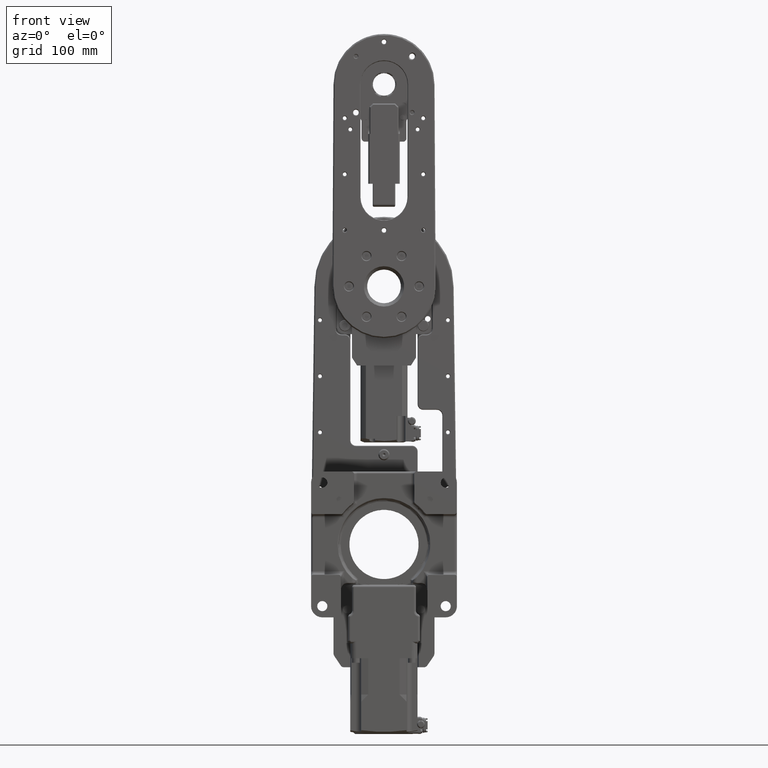
[diagram: clean part render]
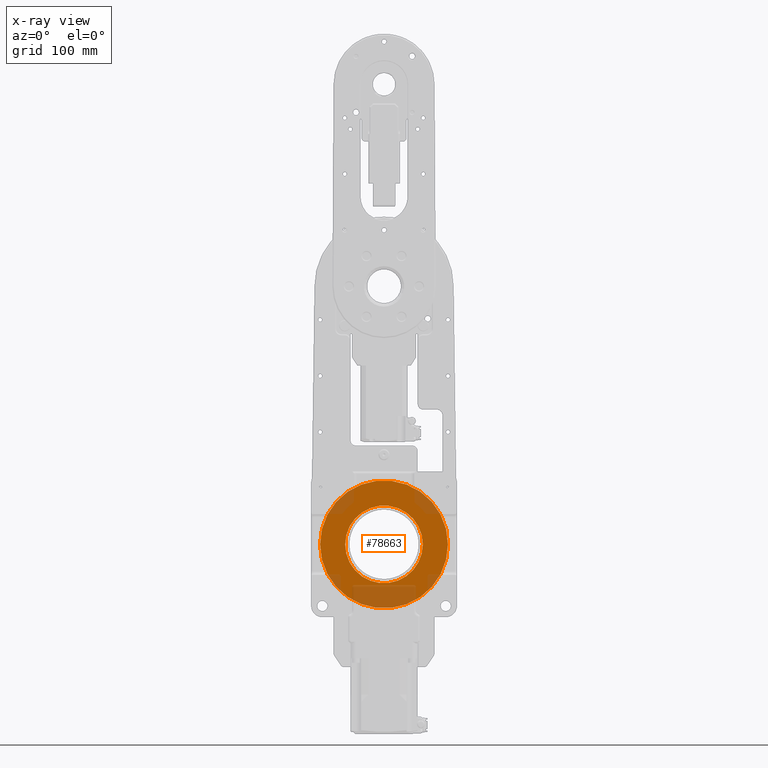
[diagram: x-ray — body ghosted, one internal face saturated and labeled with its STEP entity id]
A machine part, front view, then the same camera in x-ray: the body is ghosted and one INTERNAL B-rep face — a face not visible from any outside direction — is saturated and labeled: STEP entity #78663.
In plain terms, the highlighted planar face has unit normal (0, -1, -0).
Its self-contained STEP definition (entity closure, byte-faithful):
#5330 = DIRECTION ( 'NONE',  ( 1.000000000000000000, 0.0000000000000000000, 0.0000000000000000000 ) ) ;
#6544 = CARTESIAN_POINT ( 'NONE',  ( -8.437694987151192863E-15, 75.99999999999997158, 0.0000000000000000000 ) ) ;
#6584 = CARTESIAN_POINT ( 'NONE',  ( 34.60000000000002274, 75.99999999999997158, 0.0000000000000000000 ) ) ;
#8549 = EDGE_LOOP ( 'NONE', ( #80336, #82407 ) ) ;
#8593 = DIRECTION ( 'NONE',  ( -1.110223024625157280E-16, 1.000000000000000000, 0.0000000000000000000 ) ) ;
#11658 = VERTEX_POINT ( 'NONE', #83255 ) ;
#13809 = EDGE_CURVE ( 'NONE', #91487, #64564, #56245, .T. ) ;
#15394 = AXIS2_PLACEMENT_3D ( 'NONE', #81134, #8593, #86813 ) ;
#15498 = PLANE ( 'NONE',  #65020 ) ;
#22712 = CIRCLE ( 'NONE', #24217, 34.60000000000002984 ) ;
#24217 = AXIS2_PLACEMENT_3D ( 'NONE', #6544, #28827, #57717 ) ;
#28827 = DIRECTION ( 'NONE',  ( -1.110223024625157280E-16, 1.000000000000000000, 0.0000000000000000000 ) ) ;
#31226 = EDGE_CURVE ( 'NONE', #72091, #11658, #70294, .T. ) ;
#40434 = CARTESIAN_POINT ( 'NONE',  ( -8.437694987151192863E-15, 75.99999999999997158, 0.0000000000000000000 ) ) ;
#41422 = AXIS2_PLACEMENT_3D ( 'NONE', #51171, #80094, #57803 ) ;
#43026 = FACE_BOUND ( 'NONE', #59321, .T. ) ;
#45963 = CARTESIAN_POINT ( 'NONE',  ( -34.60000000000003695, 75.99999999999997158, -4.237277925049845435E-15 ) ) ;
#51171 = CARTESIAN_POINT ( 'NONE',  ( -8.437694987151192863E-15, 75.99999999999997158, 0.0000000000000000000 ) ) ;
#51244 = EDGE_CURVE ( 'NONE', #11658, #72091, #91321, .T. ) ;
#56245 = CIRCLE ( 'NONE', #15394, 34.60000000000002984 ) ;
#57717 = DIRECTION ( 'NONE',  ( 1.000000000000000000, 0.0000000000000000000, 0.0000000000000000000 ) ) ;
#57803 = DIRECTION ( 'NONE',  ( 1.000000000000000000, 0.0000000000000000000, 0.0000000000000000000 ) ) ;
#59069 = FACE_OUTER_BOUND ( 'NONE', #8549, .T. ) ;
#59321 = EDGE_LOOP ( 'NONE', ( #70349, #64970 ) ) ;
#64564 = VERTEX_POINT ( 'NONE', #6584 ) ;
#64970 = ORIENTED_EDGE ( 'NONE', *, *, #13809, .T. ) ;
#65020 = AXIS2_PLACEMENT_3D ( 'NONE', #80432, #66689, #71936 ) ;
#66689 = DIRECTION ( 'NONE',  ( 5.551115123125795028E-17, -1.000000000000000000, -0.0000000000000000000 ) ) ;
#70294 = CIRCLE ( 'NONE', #80938, 57.00000000000000711 ) ;
#70349 = ORIENTED_EDGE ( 'NONE', *, *, #92934, .T. ) ;
#71936 = DIRECTION ( 'NONE',  ( -1.000000000000000000, -5.551115123125795028E-17, 0.0000000000000000000 ) ) ;
#72091 = VERTEX_POINT ( 'NONE', #89690 ) ;
#77375 = DIRECTION ( 'NONE',  ( 1.110223024625157280E-16, -1.000000000000000000, -0.0000000000000000000 ) ) ;
#78663 = ADVANCED_FACE ( 'NONE', ( #59069, #43026 ), #15498, .T. ) ;
#80094 = DIRECTION ( 'NONE',  ( 1.110223024625157280E-16, -1.000000000000000000, -0.0000000000000000000 ) ) ;
#80336 = ORIENTED_EDGE ( 'NONE', *, *, #51244, .T. ) ;
#80432 = CARTESIAN_POINT ( 'NONE',  ( -8.437694987151192863E-15, 75.99999999999997158, 0.0000000000000000000 ) ) ;
#80938 = AXIS2_PLACEMENT_3D ( 'NONE', #40434, #77375, #5330 ) ;
#81134 = CARTESIAN_POINT ( 'NONE',  ( -8.437694987151192863E-15, 75.99999999999997158, 0.0000000000000000000 ) ) ;
#82407 = ORIENTED_EDGE ( 'NONE', *, *, #31226, .T. ) ;
#83255 = CARTESIAN_POINT ( 'NONE',  ( 57.00000000000000000, 75.99999999999997158, 0.0000000000000000000 ) ) ;
#86813 = DIRECTION ( 'NONE',  ( 1.000000000000000000, 0.0000000000000000000, 0.0000000000000000000 ) ) ;
#89690 = CARTESIAN_POINT ( 'NONE',  ( -57.00000000000001421, 75.99999999999997158, -6.980486755139914489E-15 ) ) ;
#91321 = CIRCLE ( 'NONE', #41422, 57.00000000000000711 ) ;
#91487 = VERTEX_POINT ( 'NONE', #45963 ) ;
#92934 = EDGE_CURVE ( 'NONE', #64564, #91487, #22712, .T. ) ;